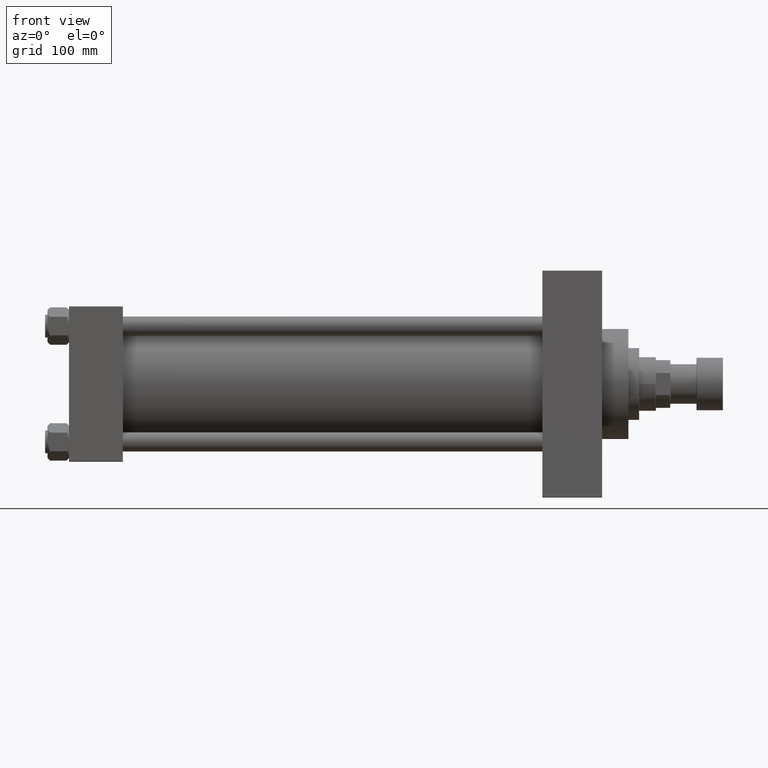
[diagram: clean part render]
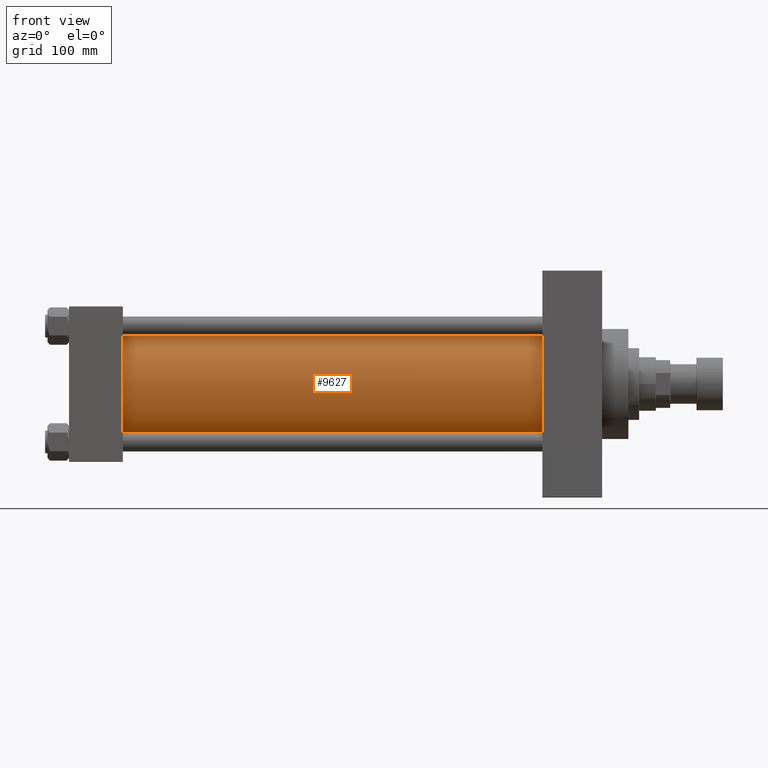
[diagram: same view with one face highlighted and labeled with its STEP entity id]
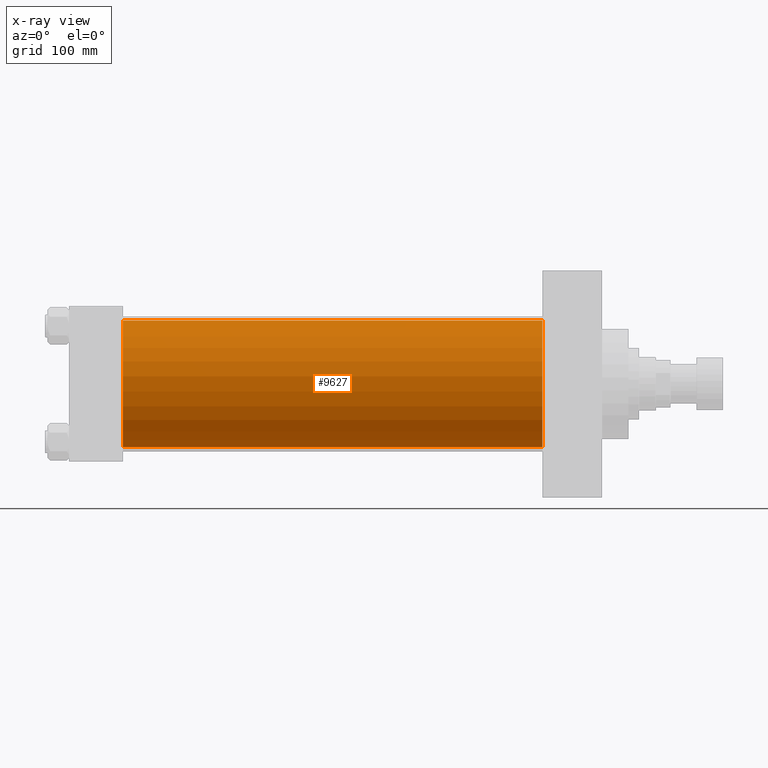
[diagram: x-ray of the same camera — body ghosted, the highlighted face saturated]
A machine part, front view. The second image highlights one B-rep face of the part: STEP entity #9627.
The next image is the same camera in x-ray: the body ghosted, the highlighted face saturated — about 0% of this face is hidden behind the body in this view.
In plain terms, the highlighted cylindrical surface (partial cylindrical patch) has radius 53 mm, axis along (-1, -0, -0).
Its self-contained STEP definition (entity closure, byte-faithful):
#102 = ORIENTED_EDGE ( 'NONE', *, *, #24104, .T. ) ;
#1453 = VERTEX_POINT ( 'NONE', #25901 ) ;
#4684 = ORIENTED_EDGE ( 'NONE', *, *, #38203, .F. ) ;
#7002 = DIRECTION ( 'NONE',  ( -1.000000000000000000, -0.000000000000000000, -0.000000000000000000 ) ) ;
#7780 = CARTESIAN_POINT ( 'NONE',  ( 44.99999999999998579, -2.602085213965210642E-15, 0.000000000000000000 ) ) ;
#9014 = ORIENTED_EDGE ( 'NONE', *, *, #28037, .T. ) ;
#9627 = ADVANCED_FACE ( 'NONE', ( #33192 ), #19065, .T. ) ;
#10648 = CARTESIAN_POINT ( 'NONE',  ( 395.9999999999999432, -2.602085213965210642E-15, 53.00000000000000711 ) ) ;
#11131 = LINE ( 'NONE', #10648, #27892 ) ;
#13053 = CARTESIAN_POINT ( 'NONE',  ( 395.9999999999999432, 3.888542821515762466E-15, -53.00000000000000711 ) ) ;
#13413 = AXIS2_PLACEMENT_3D ( 'NONE', #48032, #44614, #33659 ) ;
#19065 = CYLINDRICAL_SURFACE ( 'NONE', #13413, 53.00000000000000711 ) ;
#20774 = VERTEX_POINT ( 'NONE', #35131 ) ;
#22637 = DIRECTION ( 'NONE',  ( 1.000000000000000000, -0.000000000000000000, 0.000000000000000000 ) ) ;
#22651 = DIRECTION ( 'NONE',  ( 0.000000000000000000, 0.000000000000000000, -1.000000000000000000 ) ) ;
#24104 = EDGE_CURVE ( 'NONE', #20774, #41947, #32448, .T. ) ;
#25901 = CARTESIAN_POINT ( 'NONE',  ( 395.9999999999999432, -2.602085213965210642E-15, 53.00000000000000711 ) ) ;
#26287 = DIRECTION ( 'NONE',  ( 0.000000000000000000, 0.000000000000000000, 1.000000000000000000 ) ) ;
#26990 = EDGE_LOOP ( 'NONE', ( #4684, #28471, #9014, #102 ) ) ;
#27892 = VECTOR ( 'NONE', #7002, 1000.000000000000000 ) ;
#28037 = EDGE_CURVE ( 'NONE', #1453, #20774, #11131, .T. ) ;
#28471 = ORIENTED_EDGE ( 'NONE', *, *, #47493, .F. ) ;
#29706 = CARTESIAN_POINT ( 'NONE',  ( 395.9999999999999432, -2.602085213965210642E-15, 0.000000000000000000 ) ) ;
#29945 = DIRECTION ( 'NONE',  ( 1.000000000000000000, 0.000000000000000000, 0.000000000000000000 ) ) ;
#30213 = CARTESIAN_POINT ( 'NONE',  ( 395.9999999999999432, 3.888542821515762466E-15, -53.00000000000000711 ) ) ;
#30769 = VERTEX_POINT ( 'NONE', #30213 ) ;
#30871 = AXIS2_PLACEMENT_3D ( 'NONE', #29706, #29945, #22651 ) ;
#32448 = CIRCLE ( 'NONE', #34759, 53.00000000000000711 ) ;
#33192 = FACE_OUTER_BOUND ( 'NONE', #26990, .T. ) ;
#33659 = DIRECTION ( 'NONE',  ( 0.000000000000000000, 0.000000000000000000, 1.000000000000000000 ) ) ;
#34709 = DIRECTION ( 'NONE',  ( -1.000000000000000000, -0.000000000000000000, -0.000000000000000000 ) ) ;
#34759 = AXIS2_PLACEMENT_3D ( 'NONE', #7780, #22637, #26287 ) ;
#35131 = CARTESIAN_POINT ( 'NONE',  ( 44.99999999999998579, -2.602085213965210642E-15, 53.00000000000000711 ) ) ;
#38203 = EDGE_CURVE ( 'NONE', #30769, #41947, #46381, .T. ) ;
#38436 = VECTOR ( 'NONE', #34709, 1000.000000000000000 ) ;
#38635 = CIRCLE ( 'NONE', #30871, 53.00000000000000711 ) ;
#39685 = CARTESIAN_POINT ( 'NONE',  ( 44.99999999999998579, 3.888542821515762466E-15, -53.00000000000000711 ) ) ;
#41947 = VERTEX_POINT ( 'NONE', #39685 ) ;
#44614 = DIRECTION ( 'NONE',  ( -1.000000000000000000, -0.000000000000000000, -0.000000000000000000 ) ) ;
#46381 = LINE ( 'NONE', #13053, #38436 ) ;
#47493 = EDGE_CURVE ( 'NONE', #1453, #30769, #38635, .T. ) ;
#48032 = CARTESIAN_POINT ( 'NONE',  ( 395.9999999999999432, -2.602085213965210642E-15, 0.000000000000000000 ) ) ;